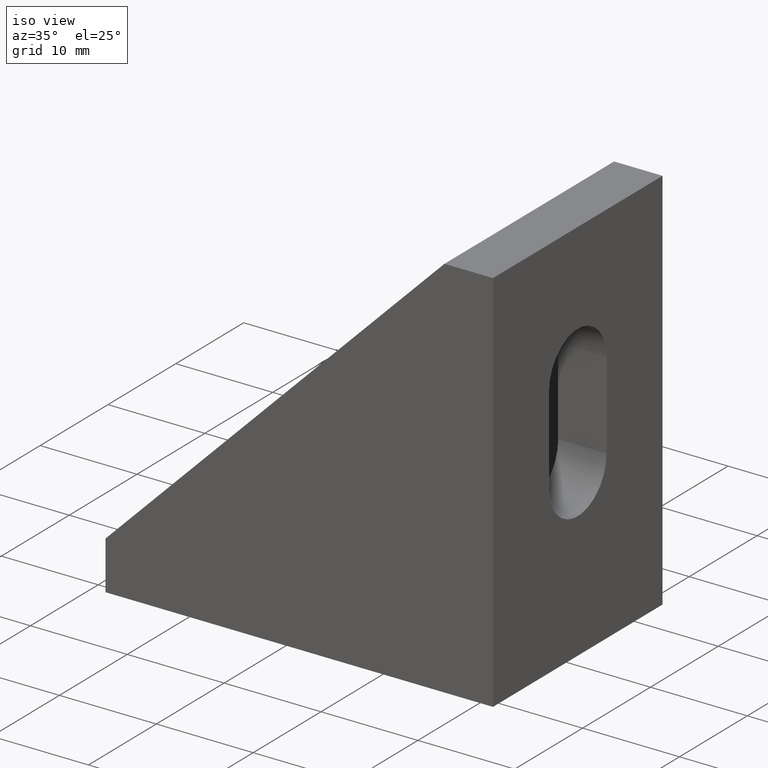
[diagram: clean part render]
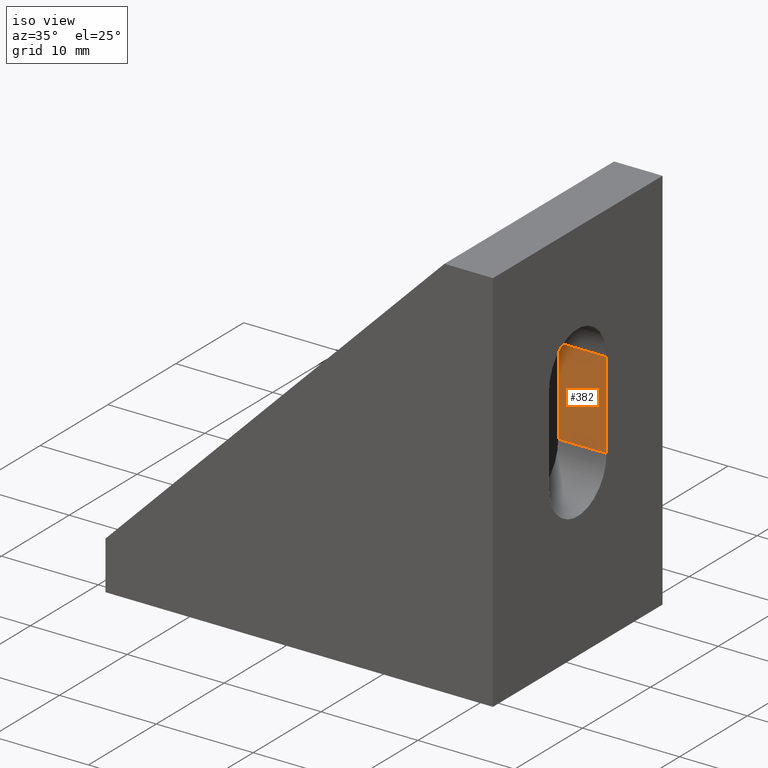
[diagram: same view with one face highlighted and labeled with its STEP entity id]
A machine part, iso view. The second image highlights one B-rep face of the part: STEP entity #382.
In plain terms, the highlighted planar face has unit normal (0, 1, -0).
Its self-contained STEP definition (entity closure, byte-faithful):
#19=PLANE('',#427);
#36=FACE_OUTER_BOUND('',#56,.T.);
#56=EDGE_LOOP('',(#273,#274,#275,#276));
#79=LINE('',#562,#125);
#81=LINE('',#568,#127);
#82=LINE('',#570,#128);
#83=LINE('',#571,#129);
#125=VECTOR('',#458,10.);
#127=VECTOR('',#464,10.);
#128=VECTOR('',#465,10.);
#129=VECTOR('',#466,10.);
#179=VERTEX_POINT('',#558);
#181=VERTEX_POINT('',#561);
#183=VERTEX_POINT('',#567);
#184=VERTEX_POINT('',#569);
#216=EDGE_CURVE('',#179,#181,#79,.T.);
#219=EDGE_CURVE('',#183,#179,#81,.T.);
#220=EDGE_CURVE('',#183,#184,#82,.T.);
#221=EDGE_CURVE('',#181,#184,#83,.T.);
#273=ORIENTED_EDGE('',*,*,#219,.F.);
#274=ORIENTED_EDGE('',*,*,#220,.T.);
#275=ORIENTED_EDGE('',*,*,#221,.F.);
#276=ORIENTED_EDGE('',*,*,#216,.F.);
#382=ADVANCED_FACE('',(#36),#19,.F.);
#427=AXIS2_PLACEMENT_3D('',#566,#462,#463);
#458=DIRECTION('',(1.,0.,0.));
#462=DIRECTION('center_axis',(0.,1.,-2.46716227694479E-16));
#463=DIRECTION('ref_axis',(0.,2.46716227694479E-16,1.));
#464=DIRECTION('',(0.,2.46716227694479E-16,1.));
#465=DIRECTION('',(1.,0.,0.));
#466=DIRECTION('',(0.,-2.46716227694479E-16,-1.));
#558=CARTESIAN_POINT('',(17.4999999999382,4.25000000000001,26.25));
#561=CARTESIAN_POINT('',(22.4999999999382,4.25000000000001,26.25));
#562=CARTESIAN_POINT('',(15.4999999999382,4.25000000000001,26.25));
#566=CARTESIAN_POINT('Origin',(15.4999999999382,4.25,17.25));
#567=CARTESIAN_POINT('',(17.4999999999382,4.25,17.25));
#568=CARTESIAN_POINT('',(17.4999999999382,4.25000000000001,28.6249999999202));
#569=CARTESIAN_POINT('',(22.4999999999382,4.25,17.25));
#570=CARTESIAN_POINT('',(15.4999999999382,4.25,17.25));
#571=CARTESIAN_POINT('',(22.49999999991,4.25,8.6249783464566));